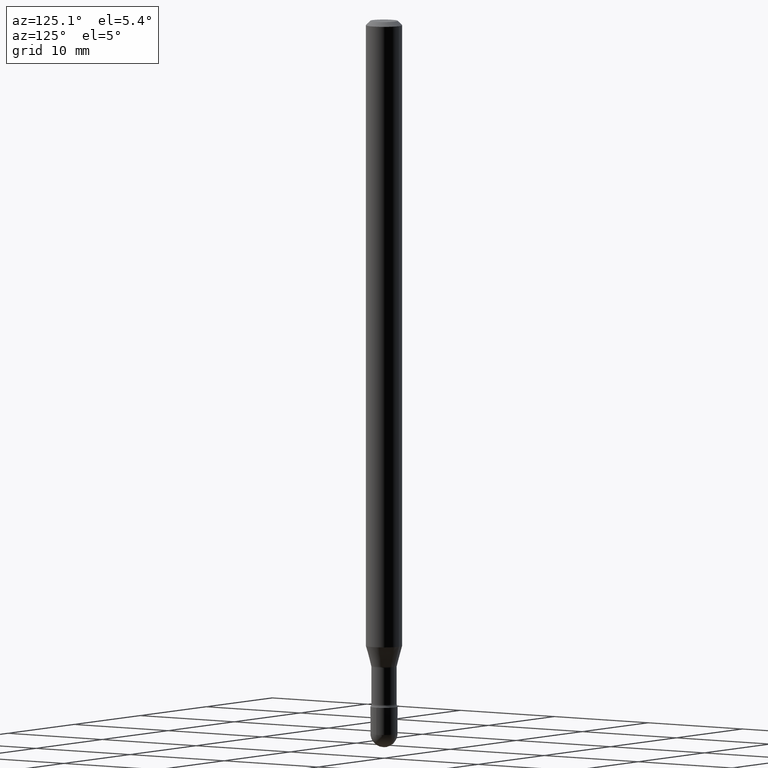
[diagram: clean part render]
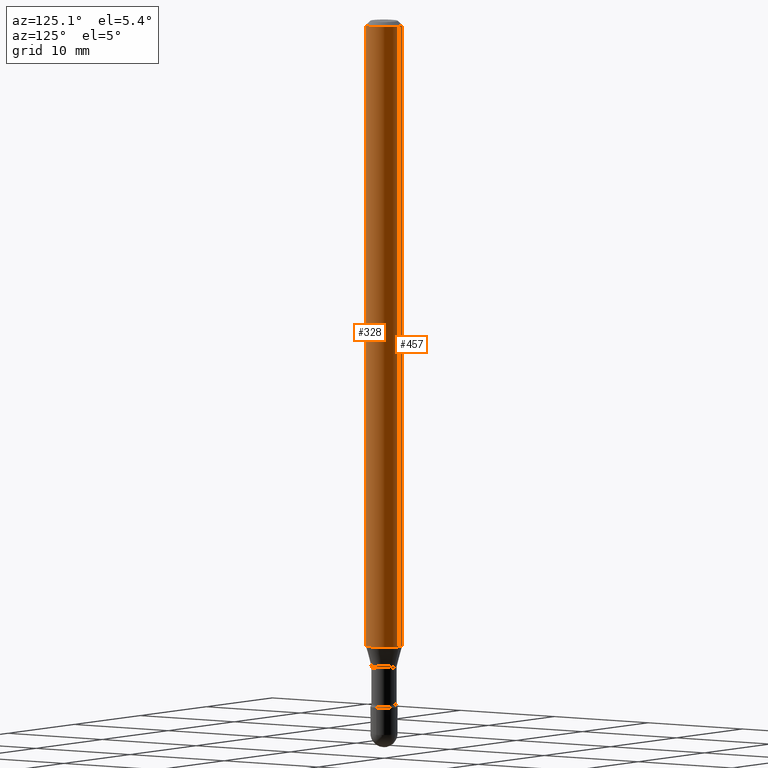
[diagram: same view with one multi-face feature highlighted, each face labeled with its STEP entity id]
A machine part, auxiliary view. The highlighted faces form ONE feature: a constant-radius fillet chain: 2 tangent blend faces with common blend radius 1.5875 mm. The faces share edges in the B-rep.
Their STEP definitions:
[1] entity #457 (Cylinder):
#2 = DIRECTION ( 'NONE',  ( -2.445467540314432280E-29, 3.491483151642043076E-15, 1.000000000000000000 ) ) ;
#39 = FACE_OUTER_BOUND ( 'NONE', #110, .T. ) ;
#45 = DIRECTION ( 'NONE',  ( -2.445467540314432280E-29, 3.491483151642042681E-15, 1.000000000000000000 ) ) ;
#63 = VERTEX_POINT ( 'NONE', #496 ) ;
#91 = DIRECTION ( 'NONE',  ( -2.445467540314432280E-29, 3.491483151642042681E-15, 1.000000000000000000 ) ) ;
#97 = LINE ( 'NONE', #268, #467 ) ;
#106 = CIRCLE ( 'NONE', #493, 0.06250000000000000000 ) ;
#110 = EDGE_LOOP ( 'NONE', ( #226, #542, #483, #279 ) ) ;
#128 = DIRECTION ( 'NONE',  ( -6.982962677686265922E-15, -1.000000000000000000, 4.370956789862821150E-15 ) ) ;
#138 = EDGE_CURVE ( 'NONE', #143, #359, #260, .T. ) ;
#143 = VERTEX_POINT ( 'NONE', #265 ) ;
#144 = VECTOR ( 'NONE', #91, 39.37007874015748143 ) ;
#153 = DIRECTION ( 'NONE',  ( -2.445467540314432280E-29, 3.491483151642043076E-15, 1.000000000000000000 ) ) ;
#162 = DIRECTION ( 'NONE',  ( -2.445467540314432280E-29, 3.491483151642043076E-15, 1.000000000000000000 ) ) ;
#172 = CYLINDRICAL_SURFACE ( 'NONE', #455, 0.06250000000000000000 ) ;
#176 = CARTESIAN_POINT ( 'NONE',  ( 4.440892098501153712E-16, 0.06249999999999251293, -2.150837444817705890 ) ) ;
#202 = EDGE_CURVE ( 'NONE', #360, #63, #97, .T. ) ;
#226 = ORIENTED_EDGE ( 'NONE', *, *, #202, .F. ) ;
#260 = LINE ( 'NONE', #386, #144 ) ;
#261 = CARTESIAN_POINT ( 'NONE',  ( -1.169113584055446105E-44, 1.669184350826100908E-30, 4.780733988912460139E-16 ) ) ;
#265 = CARTESIAN_POINT ( 'NONE',  ( -4.364351673553387171E-16, -0.06250000000000748013, -2.150837444817705002 ) ) ;
#268 = CARTESIAN_POINT ( 'NONE',  ( 4.440892098500625669E-16, 0.06250000000000000000, 2.598557019136183710E-16 ) ) ;
#279 = ORIENTED_EDGE ( 'NONE', *, *, #286, .F. ) ;
#286 = EDGE_CURVE ( 'NONE', #63, #359, #445, .T. ) ;
#341 = DIRECTION ( 'NONE',  ( -6.982962677686265922E-15, -1.000000000000000000, 3.483106191921935554E-15 ) ) ;
#359 = VERTEX_POINT ( 'NONE', #517 ) ;
#360 = VERTEX_POINT ( 'NONE', #176 ) ;
#386 = CARTESIAN_POINT ( 'NONE',  ( -4.364351673553916201E-16, -0.06250000000000000000, 6.962910958688737061E-16 ) ) ;
#394 = DIRECTION ( 'NONE',  ( -6.982962677686265922E-15, -1.000000000000000000, 3.491483151642042287E-15 ) ) ;
#445 = CIRCLE ( 'NONE', #563, 0.06250000000000000000 ) ;
#455 = AXIS2_PLACEMENT_3D ( 'NONE', #261, #153, #394 ) ;
#457 = ADVANCED_FACE ( 'NONE', ( #39 ), #172, .T. ) ;
#467 = VECTOR ( 'NONE', #45, 39.37007874015748143 ) ;
#483 = ORIENTED_EDGE ( 'NONE', *, *, #138, .T. ) ;
#493 = AXIS2_PLACEMENT_3D ( 'NONE', #560, #2, #128 ) ;
#496 = CARTESIAN_POINT ( 'NONE',  ( 4.440892098501155685E-16, 0.06249999999999995143, -0.01500000000000030129 ) ) ;
#512 = EDGE_CURVE ( 'NONE', #360, #143, #106, .T. ) ;
#517 = CARTESIAN_POINT ( 'NONE',  ( -4.364351673553912750E-16, -0.06250000000000005551, -0.01499999999999986587 ) ) ;
#542 = ORIENTED_EDGE ( 'NONE', *, *, #512, .T. ) ;
#558 = CARTESIAN_POINT ( 'NONE',  ( 3.668201310471668669E-31, -5.237224727463093505E-17, -0.01500000000000008271 ) ) ;
#560 = CARTESIAN_POINT ( 'NONE',  ( 5.259803155794532957E-29, -7.509612700501841428E-15, -2.150837444817705446 ) ) ;
#563 = AXIS2_PLACEMENT_3D ( 'NONE', #558, #162, #341 ) ;
[2] entity #328 (Cylinder):
#25 = ORIENTED_EDGE ( 'NONE', *, *, #138, .F. ) ;
#44 = DIRECTION ( 'NONE',  ( -6.982962677686265922E-15, -1.000000000000000000, 4.370956789862821150E-15 ) ) ;
#45 = DIRECTION ( 'NONE',  ( -2.445467540314432280E-29, 3.491483151642042681E-15, 1.000000000000000000 ) ) ;
#63 = VERTEX_POINT ( 'NONE', #496 ) ;
#74 = DIRECTION ( 'NONE',  ( -2.445467540314432280E-29, 3.491483151642043076E-15, 1.000000000000000000 ) ) ;
#78 = EDGE_CURVE ( 'NONE', #359, #63, #530, .T. ) ;
#90 = CARTESIAN_POINT ( 'NONE',  ( 5.259803155794532957E-29, -7.509612700501841428E-15, -2.150837444817705446 ) ) ;
#91 = DIRECTION ( 'NONE',  ( -2.445467540314432280E-29, 3.491483151642042681E-15, 1.000000000000000000 ) ) ;
#92 = DIRECTION ( 'NONE',  ( -2.445467540314432280E-29, 3.491483151642043076E-15, 1.000000000000000000 ) ) ;
#97 = LINE ( 'NONE', #268, #467 ) ;
#138 = EDGE_CURVE ( 'NONE', #143, #359, #260, .T. ) ;
#140 = DIRECTION ( 'NONE',  ( -2.445467540314432280E-29, 3.491483151642043076E-15, 1.000000000000000000 ) ) ;
#143 = VERTEX_POINT ( 'NONE', #265 ) ;
#144 = VECTOR ( 'NONE', #91, 39.37007874015748143 ) ;
#154 = AXIS2_PLACEMENT_3D ( 'NONE', #301, #92, #432 ) ;
#160 = AXIS2_PLACEMENT_3D ( 'NONE', #269, #140, #366 ) ;
#176 = CARTESIAN_POINT ( 'NONE',  ( 4.440892098501153712E-16, 0.06249999999999251293, -2.150837444817705890 ) ) ;
#202 = EDGE_CURVE ( 'NONE', #360, #63, #97, .T. ) ;
#260 = LINE ( 'NONE', #386, #144 ) ;
#265 = CARTESIAN_POINT ( 'NONE',  ( -4.364351673553387171E-16, -0.06250000000000748013, -2.150837444817705002 ) ) ;
#268 = CARTESIAN_POINT ( 'NONE',  ( 4.440892098500625669E-16, 0.06250000000000000000, 2.598557019136183710E-16 ) ) ;
#269 = CARTESIAN_POINT ( 'NONE',  ( 3.668201310471668669E-31, -5.237224727463093505E-17, -0.01500000000000008271 ) ) ;
#301 = CARTESIAN_POINT ( 'NONE',  ( -1.169113584055446105E-44, 1.669184350826100908E-30, 4.780733988912460139E-16 ) ) ;
#315 = ORIENTED_EDGE ( 'NONE', *, *, #202, .T. ) ;
#322 = CIRCLE ( 'NONE', #333, 0.06250000000000000000 ) ;
#328 = ADVANCED_FACE ( 'NONE', ( #407 ), #347, .T. ) ;
#333 = AXIS2_PLACEMENT_3D ( 'NONE', #90, #74, #44 ) ;
#347 = CYLINDRICAL_SURFACE ( 'NONE', #154, 0.06250000000000000000 ) ;
#356 = ORIENTED_EDGE ( 'NONE', *, *, #442, .T. ) ;
#359 = VERTEX_POINT ( 'NONE', #517 ) ;
#360 = VERTEX_POINT ( 'NONE', #176 ) ;
#366 = DIRECTION ( 'NONE',  ( -6.982962677686265922E-15, -1.000000000000000000, 3.483106191921935554E-15 ) ) ;
#386 = CARTESIAN_POINT ( 'NONE',  ( -4.364351673553916201E-16, -0.06250000000000000000, 6.962910958688737061E-16 ) ) ;
#398 = ORIENTED_EDGE ( 'NONE', *, *, #78, .F. ) ;
#407 = FACE_OUTER_BOUND ( 'NONE', #505, .T. ) ;
#432 = DIRECTION ( 'NONE',  ( -6.982962677686265922E-15, -1.000000000000000000, 3.491483151642042287E-15 ) ) ;
#442 = EDGE_CURVE ( 'NONE', #143, #360, #322, .T. ) ;
#467 = VECTOR ( 'NONE', #45, 39.37007874015748143 ) ;
#496 = CARTESIAN_POINT ( 'NONE',  ( 4.440892098501155685E-16, 0.06249999999999995143, -0.01500000000000030129 ) ) ;
#505 = EDGE_LOOP ( 'NONE', ( #356, #315, #398, #25 ) ) ;
#517 = CARTESIAN_POINT ( 'NONE',  ( -4.364351673553912750E-16, -0.06250000000000005551, -0.01499999999999986587 ) ) ;
#530 = CIRCLE ( 'NONE', #160, 0.06250000000000000000 ) ;